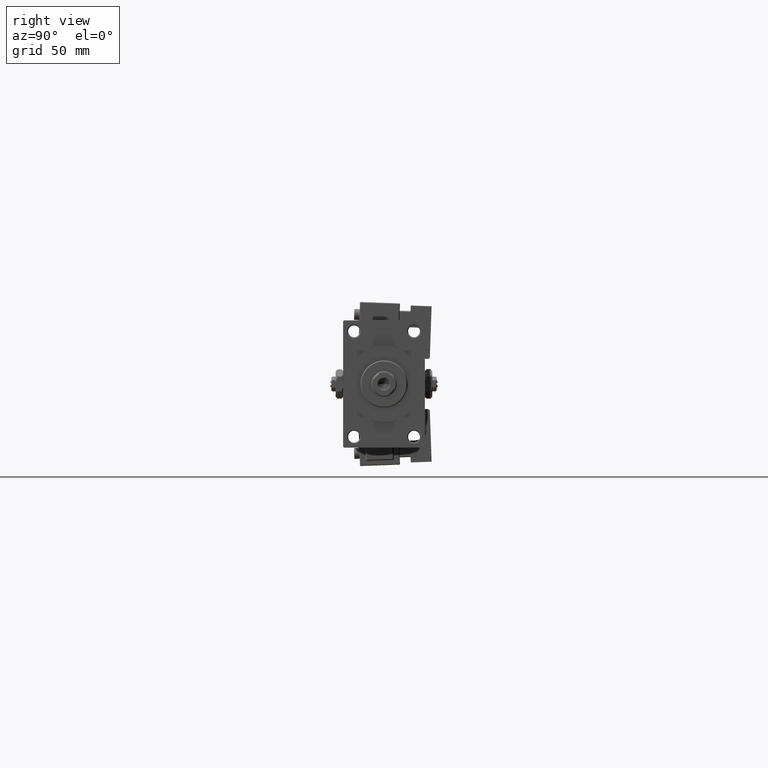
[diagram: clean part render]
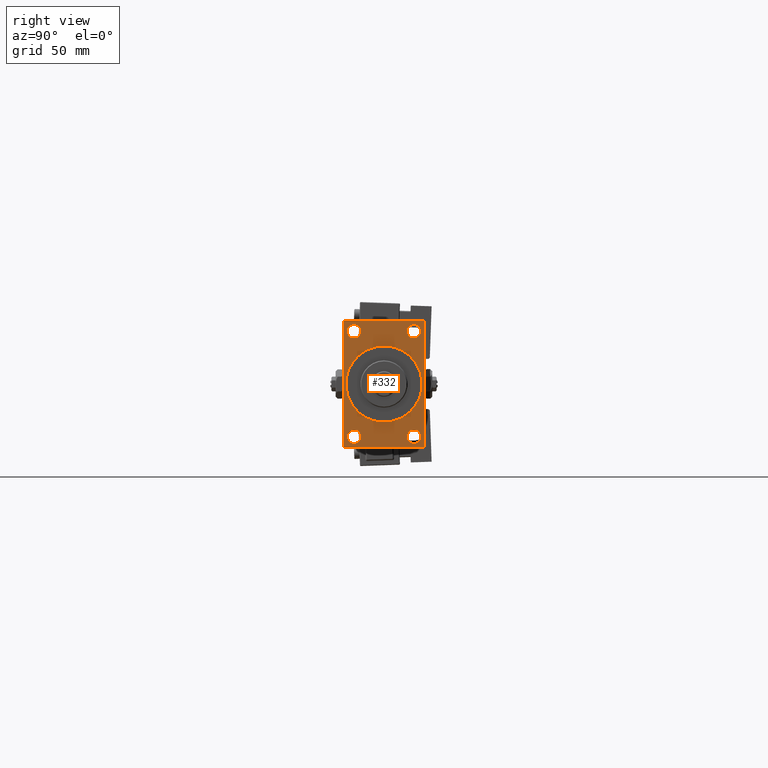
[diagram: same view with one face highlighted and labeled with its STEP entity id]
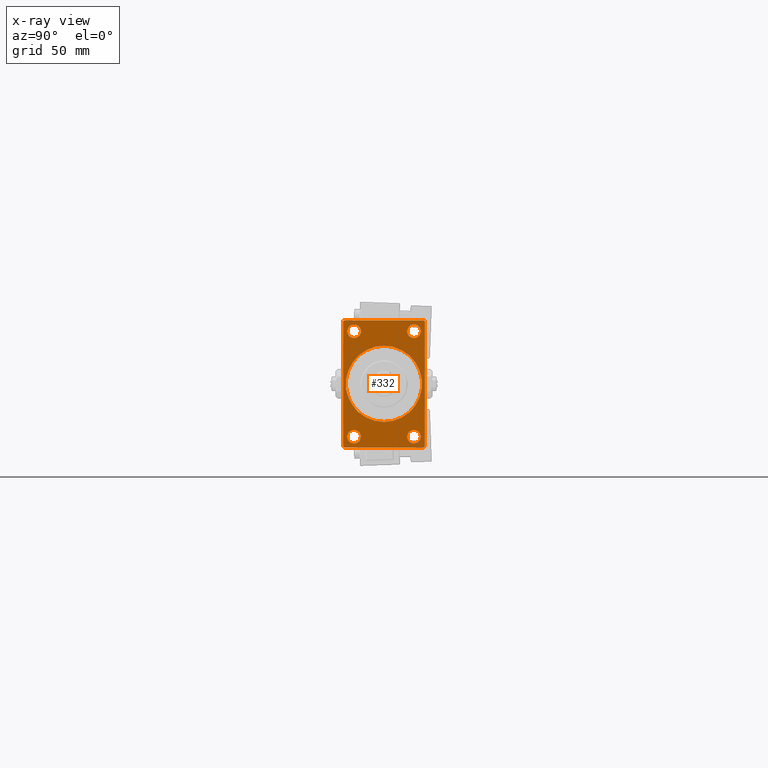
[diagram: x-ray of the same camera — body ghosted, the highlighted face saturated]
A machine part, right view. The second image highlights one B-rep face of the part: STEP entity #332.
The next image is the same camera in x-ray: the body ghosted, the highlighted face saturated — about 0% of this face is hidden behind the body in this view.
In plain terms, the highlighted planar face has unit normal (-1, 0, 0).
Its self-contained STEP definition (entity closure, byte-faithful):
#332 = ADVANCED_FACE ( 'NONE', ( #40064, #8957, #990, #28009, #9216, #20542 ), #4849, .F. ) ;
#591 = ORIENTED_EDGE ( 'NONE', *, *, #36372, .T. ) ;
#663 = CIRCLE ( 'NONE', #46624, 21.00000000000000000 ) ;
#942 = DIRECTION ( 'NONE',  ( -1.000000000000000000, -0.000000000000000000, -0.000000000000000000 ) ) ;
#990 = FACE_BOUND ( 'NONE', #49361, .T. ) ;
#1380 = EDGE_LOOP ( 'NONE', ( #16961, #24971 ) ) ;
#1647 = EDGE_LOOP ( 'NONE', ( #34001, #36129, #16844, #591, #31304, #20847, #7632, #42595 ) ) ;
#1871 = VERTEX_POINT ( 'NONE', #45850 ) ;
#2724 = CIRCLE ( 'NONE', #23292, 3.750000000000034639 ) ;
#2992 = CARTESIAN_POINT ( 'NONE',  ( 343.0000000000000000, -22.50000000000000355, 34.49999999999995026 ) ) ;
#4311 = LINE ( 'NONE', #35679, #17305 ) ;
#4743 = CIRCLE ( 'NONE', #35941, 3.750000000000034639 ) ;
#4849 = PLANE ( 'NONE',  #38704 ) ;
#4869 = CARTESIAN_POINT ( 'NONE',  ( 343.0000000000000000, -16.50000000000000000, -32.75000000000002842 ) ) ;
#4983 = DIRECTION ( 'NONE',  ( -1.000000000000000000, -0.000000000000000000, -0.000000000000000000 ) ) ;
#5005 = DIRECTION ( 'NONE',  ( 0.000000000000000000, 0.000000000000000000, 1.000000000000000000 ) ) ;
#5050 = ORIENTED_EDGE ( 'NONE', *, *, #13958, .T. ) ;
#5633 = CARTESIAN_POINT ( 'NONE',  ( 343.0000000000000000, 0.000000000000000000, 0.000000000000000000 ) ) ;
#6163 = CIRCLE ( 'NONE', #36503, 3.750000000000031086 ) ;
#7046 = LINE ( 'NONE', #19134, #48990 ) ;
#7343 = DIRECTION ( 'NONE',  ( -0.000000000000000000, -0.7071067811865474617, -0.7071067811865474617 ) ) ;
#7632 = ORIENTED_EDGE ( 'NONE', *, *, #13641, .T. ) ;
#7796 = LINE ( 'NONE', #39163, #50434 ) ;
#7808 = CARTESIAN_POINT ( 'NONE',  ( 343.0000000000000000, 21.99999999999993960, -35.00000000000000000 ) ) ;
#8026 = CIRCLE ( 'NONE', #18753, 3.750000000000034639 ) ;
#8204 = CARTESIAN_POINT ( 'NONE',  ( 343.0000000000000000, 22.49999999999999645, 35.00000000000000000 ) ) ;
#8249 = VECTOR ( 'NONE', #15494, 1000.000000000000000 ) ;
#8261 = ORIENTED_EDGE ( 'NONE', *, *, #41731, .T. ) ;
#8588 = CARTESIAN_POINT ( 'NONE',  ( 343.0000000000000000, 16.50000000000000000, -28.99999999999999289 ) ) ;
#8598 = VECTOR ( 'NONE', #7343, 1000.000000000000114 ) ;
#8670 = DIRECTION ( 'NONE',  ( -1.000000000000000000, -0.000000000000000000, -0.000000000000000000 ) ) ;
#8957 = FACE_BOUND ( 'NONE', #44105, .T. ) ;
#9216 = FACE_BOUND ( 'NONE', #28255, .T. ) ;
#10003 = DIRECTION ( 'NONE',  ( 1.000000000000000000, 0.000000000000000000, 0.000000000000000000 ) ) ;
#10278 = DIRECTION ( 'NONE',  ( 1.000000000000000000, 0.000000000000000000, 0.000000000000000000 ) ) ;
#10389 = EDGE_CURVE ( 'NONE', #1871, #20127, #6163, .T. ) ;
#10541 = EDGE_CURVE ( 'NONE', #30089, #14851, #11216, .T. ) ;
#11216 = LINE ( 'NONE', #2992, #8598 ) ;
#12062 = CARTESIAN_POINT ( 'NONE',  ( 343.0000000000000000, 0.000000000000000000, 0.000000000000000000 ) ) ;
#12781 = VERTEX_POINT ( 'NONE', #33650 ) ;
#13033 = DIRECTION ( 'NONE',  ( 0.000000000000000000, 0.000000000000000000, 1.000000000000000000 ) ) ;
#13641 = EDGE_CURVE ( 'NONE', #29888, #30089, #43436, .T. ) ;
#13866 = CIRCLE ( 'NONE', #37634, 3.750000000000034639 ) ;
#13958 = EDGE_CURVE ( 'NONE', #23200, #17525, #2724, .T. ) ;
#14183 = DIRECTION ( 'NONE',  ( 0.000000000000000000, 0.000000000000000000, 1.000000000000000000 ) ) ;
#14754 = CARTESIAN_POINT ( 'NONE',  ( 343.0000000000000000, -22.50000000000000355, 34.49999999999995026 ) ) ;
#14851 = VERTEX_POINT ( 'NONE', #14754 ) ;
#15282 = VERTEX_POINT ( 'NONE', #21023 ) ;
#15494 = DIRECTION ( 'NONE',  ( 0.000000000000000000, 0.000000000000000000, -1.000000000000000000 ) ) ;
#16141 = DIRECTION ( 'NONE',  ( -0.000000000000000000, 0.7071067811865474617, 0.7071067811865474617 ) ) ;
#16381 = EDGE_CURVE ( 'NONE', #24244, #20709, #27735, .T. ) ;
#16575 = EDGE_CURVE ( 'NONE', #27285, #33235, #7796, .T. ) ;
#16734 = EDGE_CURVE ( 'NONE', #19665, #33235, #17303, .T. ) ;
#16844 = ORIENTED_EDGE ( 'NONE', *, *, #16575, .F. ) ;
#16961 = ORIENTED_EDGE ( 'NONE', *, *, #24634, .T. ) ;
#17077 = ORIENTED_EDGE ( 'NONE', *, *, #37337, .T. ) ;
#17303 = LINE ( 'NONE', #40675, #30764 ) ;
#17305 = VECTOR ( 'NONE', #16141, 1000.000000000000114 ) ;
#17525 = VERTEX_POINT ( 'NONE', #39541 ) ;
#18753 = AXIS2_PLACEMENT_3D ( 'NONE', #35472, #28016, #35725 ) ;
#19134 = CARTESIAN_POINT ( 'NONE',  ( 343.0000000000000000, 21.99999999999999645, 35.00000000000000000 ) ) ;
#19355 = CARTESIAN_POINT ( 'NONE',  ( 343.0000000000000000, -21.99999999999998934, -35.00000000000000000 ) ) ;
#19665 = VERTEX_POINT ( 'NONE', #42035 ) ;
#19913 = CARTESIAN_POINT ( 'NONE',  ( 343.0000000000000000, -16.50000000000000000, 32.75000000000003553 ) ) ;
#20012 = CARTESIAN_POINT ( 'NONE',  ( 343.0000000000000000, 16.50000000000000000, 29.00000000000000355 ) ) ;
#20127 = VERTEX_POINT ( 'NONE', #37306 ) ;
#20542 = FACE_OUTER_BOUND ( 'NONE', #1647, .T. ) ;
#20709 = VERTEX_POINT ( 'NONE', #36856 ) ;
#20847 = ORIENTED_EDGE ( 'NONE', *, *, #24829, .T. ) ;
#20979 = ORIENTED_EDGE ( 'NONE', *, *, #22302, .F. ) ;
#21006 = CARTESIAN_POINT ( 'NONE',  ( 343.0000000000000000, -16.50000000000000000, 29.00000000000000711 ) ) ;
#21023 = CARTESIAN_POINT ( 'NONE',  ( 343.0000000000000000, -16.50000000000000000, 25.24999999999998224 ) ) ;
#21263 = DIRECTION ( 'NONE',  ( 0.000000000000000000, 0.000000000000000000, 1.000000000000000000 ) ) ;
#22207 = AXIS2_PLACEMENT_3D ( 'NONE', #21006, #40522, #21263 ) ;
#22302 = EDGE_CURVE ( 'NONE', #12781, #41164, #50535, .T. ) ;
#22989 = LINE ( 'NONE', #46614, #8249 ) ;
#23008 = DIRECTION ( 'NONE',  ( 0.000000000000000000, -1.000000000000000000, 0.000000000000000000 ) ) ;
#23200 = VERTEX_POINT ( 'NONE', #4869 ) ;
#23292 = AXIS2_PLACEMENT_3D ( 'NONE', #23853, #942, #43877 ) ;
#23499 = DIRECTION ( 'NONE',  ( 0.000000000000000000, -0.7071067811865474617, 0.7071067811865474617 ) ) ;
#23853 = CARTESIAN_POINT ( 'NONE',  ( 343.0000000000000000, -16.50000000000000000, -28.99999999999999289 ) ) ;
#23916 = DIRECTION ( 'NONE',  ( 0.000000000000000000, -1.000000000000000000, 0.000000000000000000 ) ) ;
#24244 = VERTEX_POINT ( 'NONE', #28986 ) ;
#24634 = EDGE_CURVE ( 'NONE', #15282, #50320, #50647, .T. ) ;
#24829 = EDGE_CURVE ( 'NONE', #24244, #29888, #7046, .T. ) ;
#24915 = DIRECTION ( 'NONE',  ( -1.000000000000000000, 0.000000000000000000, -0.000000000000000000 ) ) ;
#24971 = ORIENTED_EDGE ( 'NONE', *, *, #35599, .T. ) ;
#26831 = DIRECTION ( 'NONE',  ( -1.000000000000000000, -0.000000000000000000, -0.000000000000000000 ) ) ;
#27113 = CARTESIAN_POINT ( 'NONE',  ( 343.0000000000000000, -21.99999999999993250, 35.00000000000000000 ) ) ;
#27285 = VERTEX_POINT ( 'NONE', #7808 ) ;
#27419 = ORIENTED_EDGE ( 'NONE', *, *, #41055, .F. ) ;
#27735 = LINE ( 'NONE', #38795, #47148 ) ;
#28009 = FACE_BOUND ( 'NONE', #38909, .T. ) ;
#28016 = DIRECTION ( 'NONE',  ( -1.000000000000000000, -0.000000000000000000, -0.000000000000000000 ) ) ;
#28255 = EDGE_LOOP ( 'NONE', ( #20979, #27419 ) ) ;
#28365 = AXIS2_PLACEMENT_3D ( 'NONE', #5633, #10278, #29305 ) ;
#28986 = CARTESIAN_POINT ( 'NONE',  ( 343.0000000000000000, 22.49999999999999645, 34.50000000000000000 ) ) ;
#29305 = DIRECTION ( 'NONE',  ( 0.000000000000000000, 0.000000000000000000, -1.000000000000000000 ) ) ;
#29888 = VERTEX_POINT ( 'NONE', #44623 ) ;
#30042 = VERTEX_POINT ( 'NONE', #34833 ) ;
#30089 = VERTEX_POINT ( 'NONE', #27113 ) ;
#30764 = VECTOR ( 'NONE', #37347, 1000.000000000000114 ) ;
#30934 = DIRECTION ( 'NONE',  ( 0.000000000000000000, 0.000000000000000000, 1.000000000000000000 ) ) ;
#31304 = ORIENTED_EDGE ( 'NONE', *, *, #16381, .F. ) ;
#31858 = DIRECTION ( 'NONE',  ( -0.000000000000000000, 0.000000000000000000, 1.000000000000000000 ) ) ;
#32014 = CARTESIAN_POINT ( 'NONE',  ( 343.0000000000000000, -16.50000000000000000, 29.00000000000000711 ) ) ;
#32337 = ORIENTED_EDGE ( 'NONE', *, *, #41447, .T. ) ;
#33235 = VERTEX_POINT ( 'NONE', #19355 ) ;
#33650 = CARTESIAN_POINT ( 'NONE',  ( 343.0000000000000000, 0.000000000000000000, 21.00000000000000000 ) ) ;
#33728 = DIRECTION ( 'NONE',  ( -1.000000000000000000, -0.000000000000000000, -0.000000000000000000 ) ) ;
#34001 = ORIENTED_EDGE ( 'NONE', *, *, #47267, .T. ) ;
#34833 = CARTESIAN_POINT ( 'NONE',  ( 343.0000000000000000, 16.50000000000000000, -32.75000000000002842 ) ) ;
#35472 = CARTESIAN_POINT ( 'NONE',  ( 343.0000000000000000, 16.50000000000000000, -28.99999999999999289 ) ) ;
#35599 = EDGE_CURVE ( 'NONE', #50320, #15282, #38589, .T. ) ;
#35679 = CARTESIAN_POINT ( 'NONE',  ( 343.0000000000000000, 22.49999999999999645, -34.49999999999995026 ) ) ;
#35725 = DIRECTION ( 'NONE',  ( 0.000000000000000000, 0.000000000000000000, 1.000000000000000000 ) ) ;
#35941 = AXIS2_PLACEMENT_3D ( 'NONE', #8588, #4983, #40454 ) ;
#36129 = ORIENTED_EDGE ( 'NONE', *, *, #16734, .T. ) ;
#36372 = EDGE_CURVE ( 'NONE', #27285, #20709, #4311, .T. ) ;
#36503 = AXIS2_PLACEMENT_3D ( 'NONE', #20012, #8670, #13033 ) ;
#36856 = CARTESIAN_POINT ( 'NONE',  ( 343.0000000000000000, 22.49999999999999645, -34.49999999999995026 ) ) ;
#37306 = CARTESIAN_POINT ( 'NONE',  ( 343.0000000000000000, 16.50000000000000000, 32.75000000000003553 ) ) ;
#37337 = EDGE_CURVE ( 'NONE', #20127, #1871, #39490, .T. ) ;
#37347 = DIRECTION ( 'NONE',  ( 0.000000000000000000, 0.7071067811865474617, -0.7071067811865474617 ) ) ;
#37634 = AXIS2_PLACEMENT_3D ( 'NONE', #42741, #26831, #30934 ) ;
#37755 = DIRECTION ( 'NONE',  ( 0.000000000000000000, 0.000000000000000000, -1.000000000000000000 ) ) ;
#38033 = VECTOR ( 'NONE', #23916, 1000.000000000000000 ) ;
#38589 = CIRCLE ( 'NONE', #22207, 3.750000000000027534 ) ;
#38704 = AXIS2_PLACEMENT_3D ( 'NONE', #12062, #24915, #31858 ) ;
#38795 = CARTESIAN_POINT ( 'NONE',  ( 343.0000000000000000, 22.49999999999999645, 35.00000000000000000 ) ) ;
#38909 = EDGE_LOOP ( 'NONE', ( #41274, #17077 ) ) ;
#39048 = DIRECTION ( 'NONE',  ( 0.000000000000000000, 0.000000000000000000, -1.000000000000000000 ) ) ;
#39163 = CARTESIAN_POINT ( 'NONE',  ( 343.0000000000000000, 22.49999999999999645, -35.00000000000000000 ) ) ;
#39490 = CIRCLE ( 'NONE', #48526, 3.750000000000031086 ) ;
#39541 = CARTESIAN_POINT ( 'NONE',  ( 343.0000000000000000, -16.50000000000000000, -25.24999999999996447 ) ) ;
#39943 = AXIS2_PLACEMENT_3D ( 'NONE', #32014, #48446, #5005 ) ;
#40064 = FACE_BOUND ( 'NONE', #1380, .T. ) ;
#40454 = DIRECTION ( 'NONE',  ( 0.000000000000000000, 0.000000000000000000, 1.000000000000000000 ) ) ;
#40522 = DIRECTION ( 'NONE',  ( -1.000000000000000000, -0.000000000000000000, -0.000000000000000000 ) ) ;
#40675 = CARTESIAN_POINT ( 'NONE',  ( 343.0000000000000000, -22.00000000000000355, -35.00000000000000000 ) ) ;
#40772 = EDGE_CURVE ( 'NONE', #30042, #41340, #8026, .T. ) ;
#41026 = CARTESIAN_POINT ( 'NONE',  ( 343.0000000000000000, 16.50000000000000000, -25.24999999999996447 ) ) ;
#41055 = EDGE_CURVE ( 'NONE', #41164, #12781, #663, .T. ) ;
#41164 = VERTEX_POINT ( 'NONE', #47480 ) ;
#41274 = ORIENTED_EDGE ( 'NONE', *, *, #10389, .T. ) ;
#41340 = VERTEX_POINT ( 'NONE', #41026 ) ;
#41447 = EDGE_CURVE ( 'NONE', #41340, #30042, #4743, .T. ) ;
#41731 = EDGE_CURVE ( 'NONE', #17525, #23200, #13866, .T. ) ;
#42035 = CARTESIAN_POINT ( 'NONE',  ( 343.0000000000000000, -22.50000000000000355, -34.50000000000000000 ) ) ;
#42595 = ORIENTED_EDGE ( 'NONE', *, *, #10541, .T. ) ;
#42741 = CARTESIAN_POINT ( 'NONE',  ( 343.0000000000000000, -16.50000000000000000, -28.99999999999999289 ) ) ;
#43436 = LINE ( 'NONE', #8204, #38033 ) ;
#43877 = DIRECTION ( 'NONE',  ( 0.000000000000000000, 0.000000000000000000, 1.000000000000000000 ) ) ;
#44105 = EDGE_LOOP ( 'NONE', ( #5050, #8261 ) ) ;
#44623 = CARTESIAN_POINT ( 'NONE',  ( 343.0000000000000000, 21.99999999999999645, 35.00000000000000000 ) ) ;
#45223 = CARTESIAN_POINT ( 'NONE',  ( 343.0000000000000000, 0.000000000000000000, 0.000000000000000000 ) ) ;
#45293 = CARTESIAN_POINT ( 'NONE',  ( 343.0000000000000000, 16.50000000000000000, 29.00000000000000355 ) ) ;
#45850 = CARTESIAN_POINT ( 'NONE',  ( 343.0000000000000000, 16.50000000000000000, 25.24999999999997513 ) ) ;
#46255 = ORIENTED_EDGE ( 'NONE', *, *, #40772, .T. ) ;
#46614 = CARTESIAN_POINT ( 'NONE',  ( 343.0000000000000000, -22.50000000000000355, 35.00000000000000000 ) ) ;
#46624 = AXIS2_PLACEMENT_3D ( 'NONE', #45223, #10003, #37755 ) ;
#47148 = VECTOR ( 'NONE', #39048, 1000.000000000000000 ) ;
#47267 = EDGE_CURVE ( 'NONE', #14851, #19665, #22989, .T. ) ;
#47480 = CARTESIAN_POINT ( 'NONE',  ( 343.0000000000000000, 2.571758278209441661E-15, -21.00000000000000000 ) ) ;
#48446 = DIRECTION ( 'NONE',  ( -1.000000000000000000, -0.000000000000000000, -0.000000000000000000 ) ) ;
#48526 = AXIS2_PLACEMENT_3D ( 'NONE', #45293, #33728, #14183 ) ;
#48990 = VECTOR ( 'NONE', #23499, 1000.000000000000114 ) ;
#49361 = EDGE_LOOP ( 'NONE', ( #46255, #32337 ) ) ;
#50320 = VERTEX_POINT ( 'NONE', #19913 ) ;
#50434 = VECTOR ( 'NONE', #23008, 1000.000000000000000 ) ;
#50535 = CIRCLE ( 'NONE', #28365, 21.00000000000000000 ) ;
#50647 = CIRCLE ( 'NONE', #39943, 3.750000000000027534 ) ;